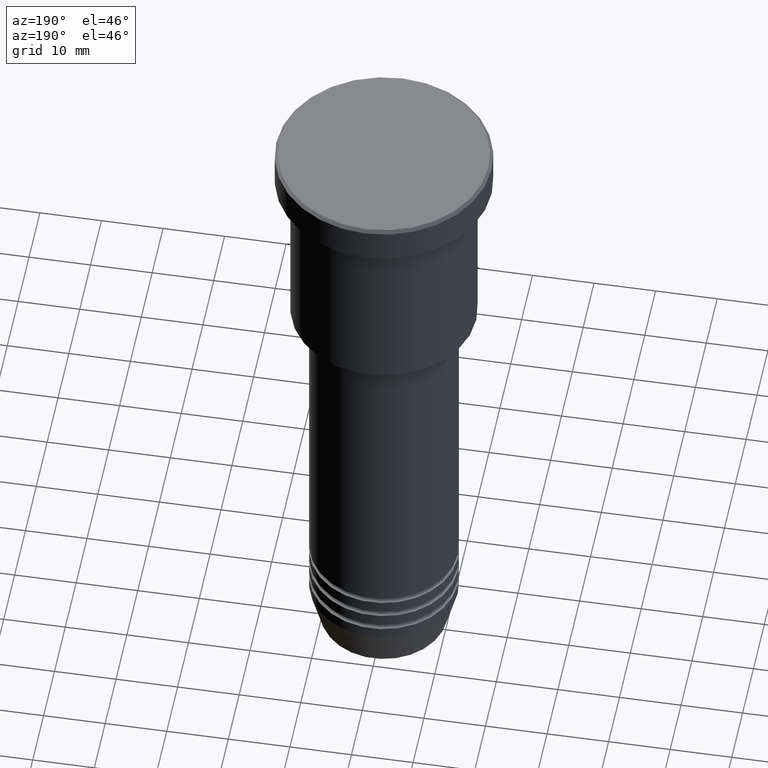
[diagram: clean part render]
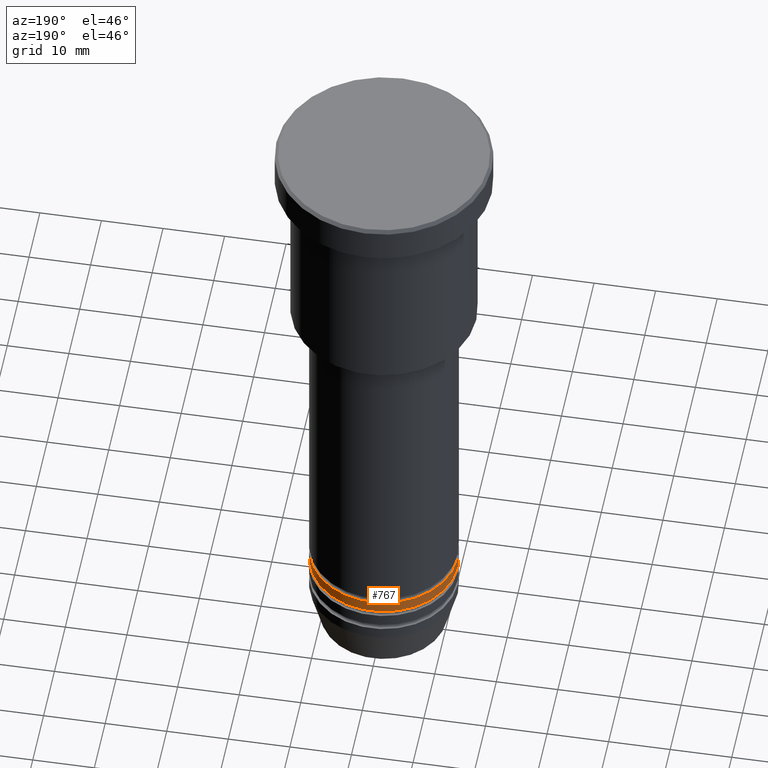
[diagram: same view with one face highlighted and labeled with its STEP entity id]
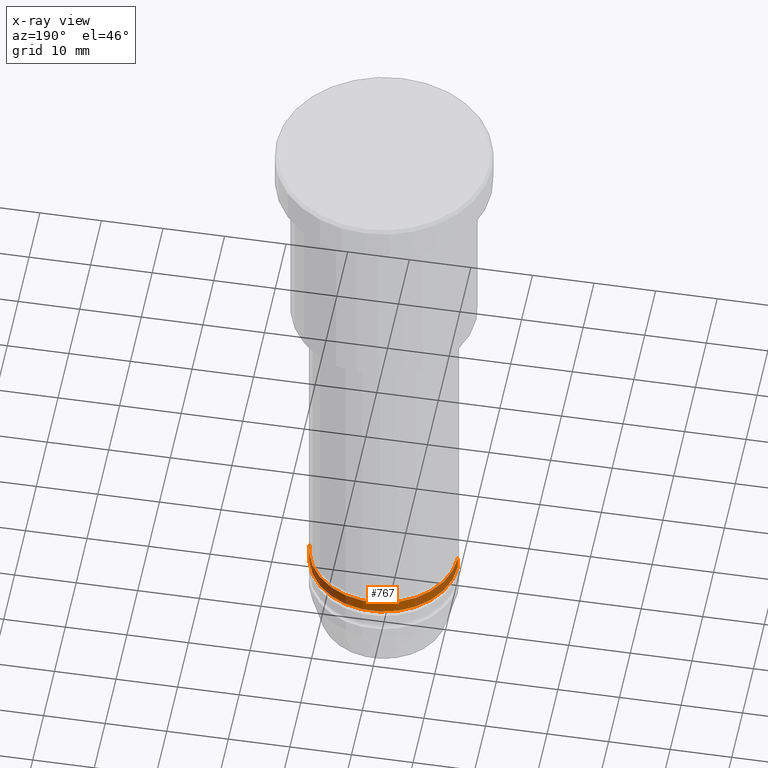
[diagram: x-ray of the same camera — body ghosted, the highlighted face saturated]
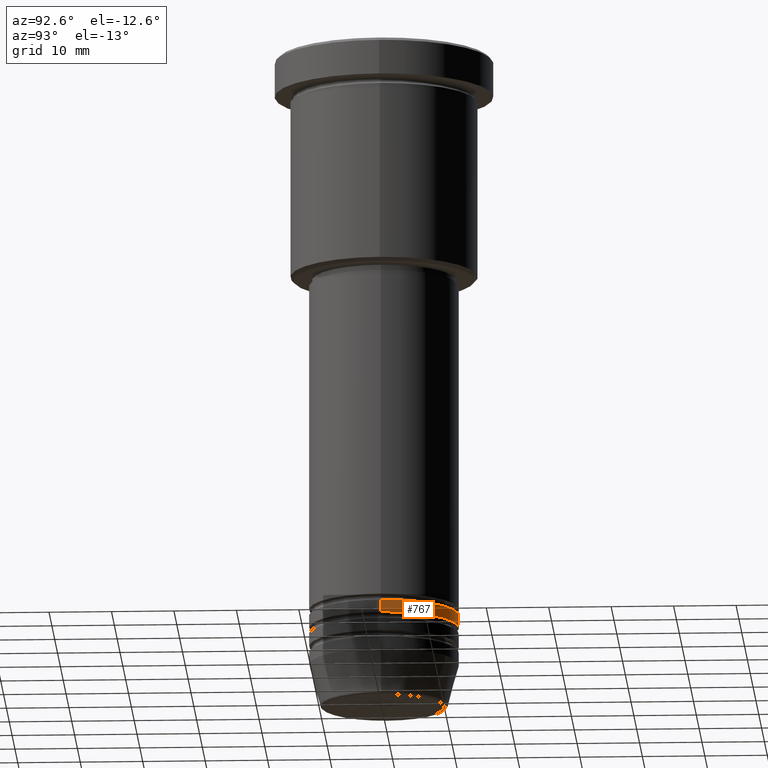
[diagram: same view with one face highlighted and labeled with its STEP entity id]
A machine part, auxiliary view. The second image highlights one B-rep face of the part: STEP entity #767.
The next image is the same camera in x-ray: the body ghosted, the highlighted face saturated — about 0% of this face is hidden behind the body in this view.
A second angle (auxiliary view) of the same face is appended — the face is thin or edge-on in the first view.
In plain terms, the highlighted cylindrical surface (partial cylindrical patch) has radius 12 mm, axis along (-0, -0, 1).
Its self-contained STEP definition (entity closure, byte-faithful):
#20 = EDGE_CURVE ( 'NONE', #508, #869, #1068, .T. ) ;
#36 = CIRCLE ( 'NONE', #1179, 12.00000000000000000 ) ;
#59 = CARTESIAN_POINT ( 'NONE',  ( -12.00000000000000000, 1.469576158976823947E-15, 0.000000000000000000 ) ) ;
#111 = CARTESIAN_POINT ( 'NONE',  ( -12.00000000000000000, 1.469576158976823947E-15, -92.99999999999997158 ) ) ;
#115 = VERTEX_POINT ( 'NONE', #383 ) ;
#178 = CARTESIAN_POINT ( 'NONE',  ( 0.000000000000000000, 0.000000000000000000, 0.000000000000000000 ) ) ;
#205 = EDGE_CURVE ( 'NONE', #508, #885, #551, .T. ) ;
#215 = AXIS2_PLACEMENT_3D ( 'NONE', #958, #323, #762 ) ;
#229 = DIRECTION ( 'NONE',  ( -0.000000000000000000, -0.000000000000000000, 1.000000000000000000 ) ) ;
#258 = LINE ( 'NONE', #59, #1113 ) ;
#323 = DIRECTION ( 'NONE',  ( -0.000000000000000000, -0.000000000000000000, 1.000000000000000000 ) ) ;
#351 = ORIENTED_EDGE ( 'NONE', *, *, #205, .T. ) ;
#363 = ORIENTED_EDGE ( 'NONE', *, *, #648, .T. ) ;
#383 = CARTESIAN_POINT ( 'NONE',  ( -12.00000000000000000, 1.469576158976823947E-15, -90.99999999999998579 ) ) ;
#437 = VECTOR ( 'NONE', #990, 1000.000000000000000 ) ;
#484 = EDGE_LOOP ( 'NONE', ( #351, #363, #541, #1181 ) ) ;
#503 = CARTESIAN_POINT ( 'NONE',  ( 12.00000000000000000, 0.000000000000000000, -92.99999999999997158 ) ) ;
#508 = VERTEX_POINT ( 'NONE', #503 ) ;
#541 = ORIENTED_EDGE ( 'NONE', *, *, #569, .F. ) ;
#551 = CIRCLE ( 'NONE', #215, 12.00000000000000000 ) ;
#556 = AXIS2_PLACEMENT_3D ( 'NONE', #178, #919, #1075 ) ;
#569 = EDGE_CURVE ( 'NONE', #869, #115, #36, .T. ) ;
#585 = DIRECTION ( 'NONE',  ( 1.000000000000000000, 0.000000000000000000, 0.000000000000000000 ) ) ;
#618 = DIRECTION ( 'NONE',  ( -0.000000000000000000, -0.000000000000000000, 1.000000000000000000 ) ) ;
#624 = FACE_OUTER_BOUND ( 'NONE', #484, .T. ) ;
#648 = EDGE_CURVE ( 'NONE', #885, #115, #258, .T. ) ;
#681 = CARTESIAN_POINT ( 'NONE',  ( 0.000000000000000000, 0.000000000000000000, -90.99999999999998579 ) ) ;
#762 = DIRECTION ( 'NONE',  ( 1.000000000000000000, 0.000000000000000000, 0.000000000000000000 ) ) ;
#767 = ADVANCED_FACE ( 'NONE', ( #624 ), #1097, .T. ) ;
#869 = VERTEX_POINT ( 'NONE', #881 ) ;
#881 = CARTESIAN_POINT ( 'NONE',  ( 12.00000000000000000, 0.000000000000000000, -90.99999999999998579 ) ) ;
#885 = VERTEX_POINT ( 'NONE', #111 ) ;
#919 = DIRECTION ( 'NONE',  ( -0.000000000000000000, -0.000000000000000000, 1.000000000000000000 ) ) ;
#958 = CARTESIAN_POINT ( 'NONE',  ( 0.000000000000000000, 0.000000000000000000, -92.99999999999997158 ) ) ;
#990 = DIRECTION ( 'NONE',  ( -0.000000000000000000, -0.000000000000000000, 1.000000000000000000 ) ) ;
#1068 = LINE ( 'NONE', #1076, #437 ) ;
#1075 = DIRECTION ( 'NONE',  ( 1.000000000000000000, 0.000000000000000000, 0.000000000000000000 ) ) ;
#1076 = CARTESIAN_POINT ( 'NONE',  ( 12.00000000000000000, 0.000000000000000000, 0.000000000000000000 ) ) ;
#1097 = CYLINDRICAL_SURFACE ( 'NONE', #556, 12.00000000000000000 ) ;
#1113 = VECTOR ( 'NONE', #618, 1000.000000000000000 ) ;
#1179 = AXIS2_PLACEMENT_3D ( 'NONE', #681, #229, #585 ) ;
#1181 = ORIENTED_EDGE ( 'NONE', *, *, #20, .F. ) ;